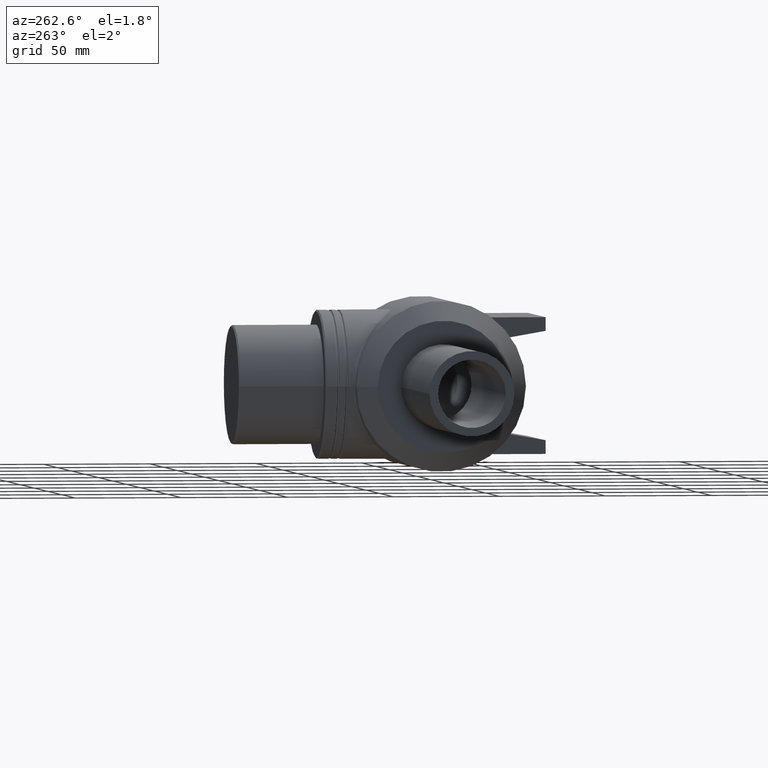
[diagram: clean part render]
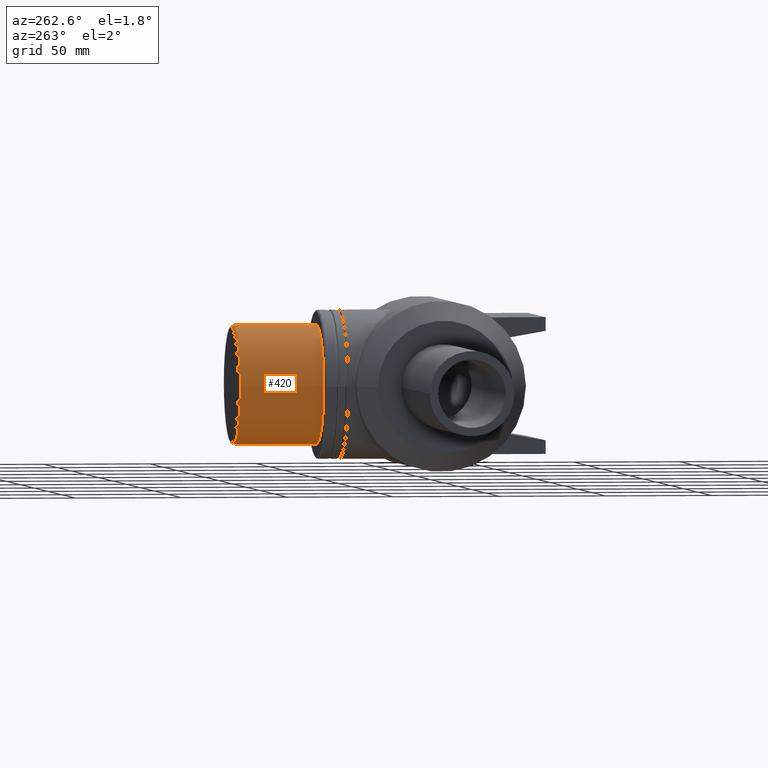
[diagram: same view with one face highlighted and labeled with its STEP entity id]
A machine part, auxiliary view. The second image highlights one B-rep face of the part: STEP entity #420.
In plain terms, the highlighted cylindrical surface (bore or boss wall) has radius 28 mm, axis along (0, 1, 0).
Its self-contained STEP definition (entity closure, byte-faithful):
#87=FACE_BOUND('',#161,.T.);
#106=CYLINDRICAL_SURFACE('',#468,28.);
#119=FACE_OUTER_BOUND('',#160,.T.);
#160=EDGE_LOOP('',(#341));
#161=EDGE_LOOP('',(#342));
#214=CIRCLE('',#464,28.);
#215=CIRCLE('',#466,28.);
#245=VERTEX_POINT('',#905);
#246=VERTEX_POINT('',#908);
#285=EDGE_CURVE('',#245,#245,#214,.T.);
#286=EDGE_CURVE('',#246,#246,#215,.T.);
#341=ORIENTED_EDGE('',*,*,#285,.T.);
#342=ORIENTED_EDGE('',*,*,#286,.F.);
#420=ADVANCED_FACE('',(#119,#87),#106,.T.);
#464=AXIS2_PLACEMENT_3D('',#906,#544,#545);
#466=AXIS2_PLACEMENT_3D('',#909,#548,#549);
#468=AXIS2_PLACEMENT_3D('',#912,#552,#553);
#544=DIRECTION('center_axis',(0.,1.,0.));
#545=DIRECTION('ref_axis',(1.,0.,0.));
#548=DIRECTION('center_axis',(0.,1.,0.));
#549=DIRECTION('ref_axis',(1.,0.,0.));
#552=DIRECTION('center_axis',(0.,1.,0.));
#553=DIRECTION('ref_axis',(-1.,0.,0.));
#905=CARTESIAN_POINT('',(-28.,54.,0.));
#906=CARTESIAN_POINT('Origin',(0.,54.,0.));
#908=CARTESIAN_POINT('',(-28.,93.3,3.42901103761259E-15));
#909=CARTESIAN_POINT('Origin',(0.,93.3,0.));
#912=CARTESIAN_POINT('Origin',(0.,74.,0.));